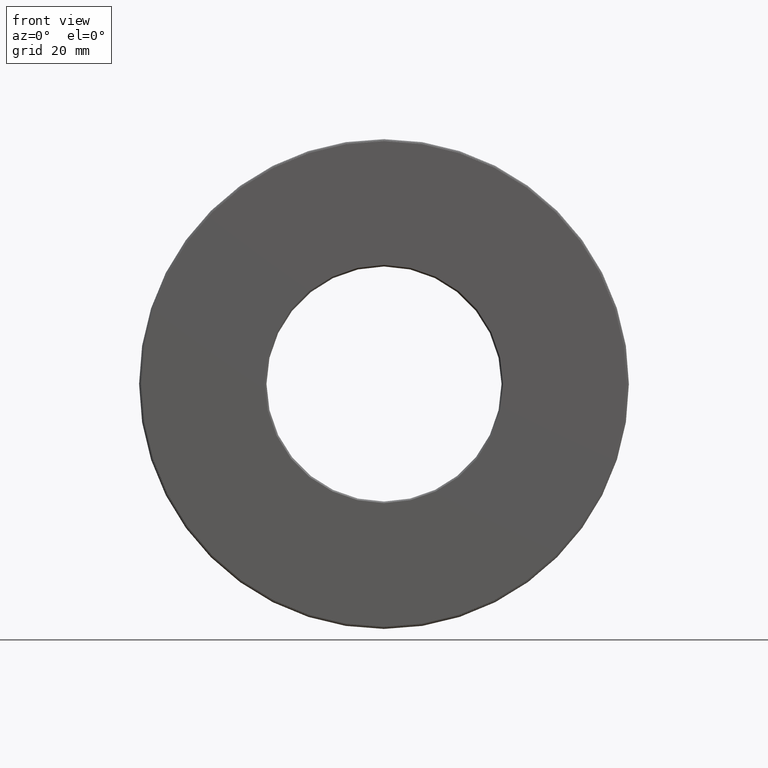
[diagram: clean part render]
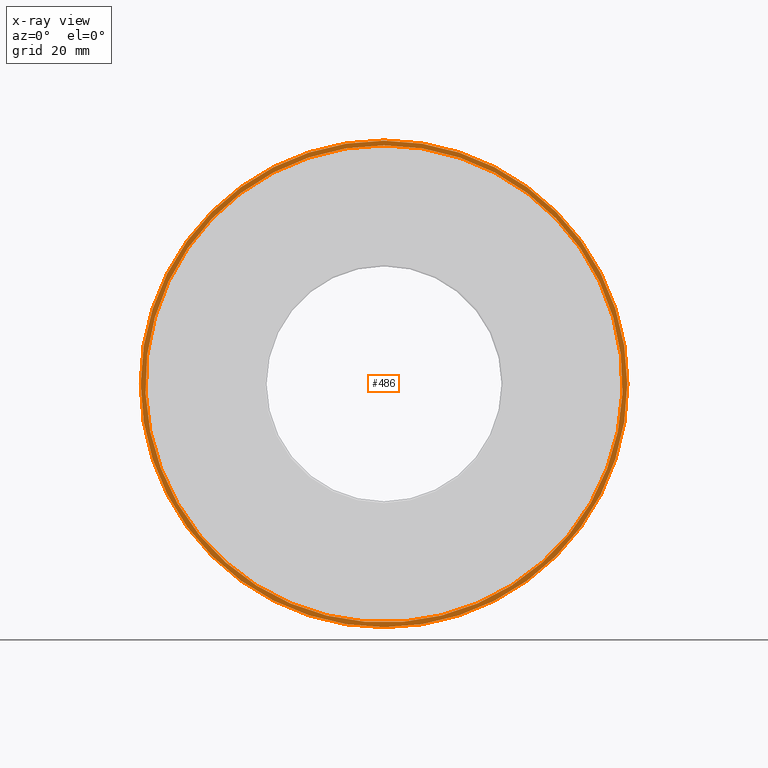
[diagram: x-ray — body ghosted, one internal face saturated and labeled with its STEP entity id]
A machine part, front view, then the same camera in x-ray: the body is ghosted and one INTERNAL B-rep face — a face not visible from any outside direction — is saturated and labeled: STEP entity #486.
In plain terms, the highlighted planar face has unit normal (-0, 1, 0).
Its self-contained STEP definition (entity closure, byte-faithful):
#40 = CARTESIAN_POINT ( 'NONE',  ( 0.0000000000000000000, 2.965000000000000300, 0.0000000000000000000 ) ) ;
#136 = CARTESIAN_POINT ( 'NONE',  ( 0.0000000000000000000, 2.965000000000000300, 3.105000000000000400 ) ) ;
#170 = VERTEX_POINT ( 'NONE', #136 ) ;
#180 = ORIENTED_EDGE ( 'NONE', *, *, #222, .F. ) ;
#185 = CIRCLE ( 'NONE', #366, 3.044999999999999900 ) ;
#205 = ORIENTED_EDGE ( 'NONE', *, *, #585, .T. ) ;
#208 = AXIS2_PLACEMENT_3D ( 'NONE', #40, #223, #306 ) ;
#222 = EDGE_CURVE ( 'NONE', #170, #170, #383, .T. ) ;
#223 = DIRECTION ( 'NONE',  ( -0.0000000000000000000, 1.000000000000000000, 0.0000000000000000000 ) ) ;
#298 = FACE_BOUND ( 'NONE', #463, .T. ) ;
#306 = DIRECTION ( 'NONE',  ( 0.0000000000000000000, 0.0000000000000000000, 1.000000000000000000 ) ) ;
#366 = AXIS2_PLACEMENT_3D ( 'NONE', #564, #405, #517 ) ;
#368 = CARTESIAN_POINT ( 'NONE',  ( 0.0000000000000000000, 2.965000000000000300, 3.044999999999999900 ) ) ;
#375 = EDGE_LOOP ( 'NONE', ( #180 ) ) ;
#383 = CIRCLE ( 'NONE', #429, 3.105000000000000400 ) ;
#405 = DIRECTION ( 'NONE',  ( -0.0000000000000000000, 1.000000000000000000, -0.0000000000000000000 ) ) ;
#406 = VERTEX_POINT ( 'NONE', #368 ) ;
#429 = AXIS2_PLACEMENT_3D ( 'NONE', #476, #531, #483 ) ;
#449 = PLANE ( 'NONE',  #208 ) ;
#463 = EDGE_LOOP ( 'NONE', ( #205 ) ) ;
#476 = CARTESIAN_POINT ( 'NONE',  ( 0.0000000000000000000, 2.965000000000000300, 0.0000000000000000000 ) ) ;
#483 = DIRECTION ( 'NONE',  ( 0.0000000000000000000, 0.0000000000000000000, 1.000000000000000000 ) ) ;
#486 = ADVANCED_FACE ( 'NONE', ( #587, #298 ), #449, .F. ) ;
#517 = DIRECTION ( 'NONE',  ( 0.0000000000000000000, 0.0000000000000000000, 1.000000000000000000 ) ) ;
#531 = DIRECTION ( 'NONE',  ( -0.0000000000000000000, 1.000000000000000000, -0.0000000000000000000 ) ) ;
#564 = CARTESIAN_POINT ( 'NONE',  ( 0.0000000000000000000, 2.965000000000000300, 0.0000000000000000000 ) ) ;
#585 = EDGE_CURVE ( 'NONE', #406, #406, #185, .T. ) ;
#587 = FACE_OUTER_BOUND ( 'NONE', #375, .T. ) ;